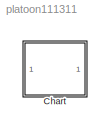
MODEL platoon111311
KIND model
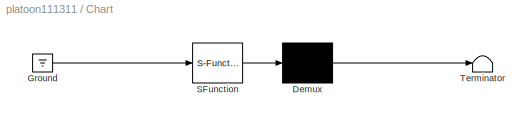
BLOCK [SubSystem] Chart
  ErrorFcn = Stateflow.Translate.translate
  FunctionWithSeparateData = off
  MaskDescription = Stateflow diagram
  MaskDisplay = plot(sf('Private','sfblk','xIcon'),sf('Private','sfblk','yIcon'));text(0.5,0,sf('Private', 'sfblk', 'tIcon'),'HorizontalAl','Center','VerticalAl','Bottom');
  MaskHideContents = off
  MaskIconFrame = off
  MaskIconOpaque = on
  MaskIconRotate = none
  MaskIconUnits = normalized
  MaskPortRotate = default
  MaskSelfModifiable = on
  MaskType = Stateflow
  MinAlgLoopOccurrences = off
  Opaque = off
  PermitHierarchicalResolution = ExplicitOnly
  Ports = []
  PropExecContextOutsideSubsystem = off
  RTWSystemCode = Auto
  RequestExecContextInheritance = off
  SFBlockType = Chart
  SID = 1
  TreatAsAtomicUnit = on
BLOCK [Demux] Chart/ Demux 
  Outputs = 1
  Ports = [1, 1]
  SID = 1::26
BLOCK [Ground] Chart/ Ground 
  SID = 1::27
BLOCK [S-Function] Chart/ SFunction 
  EnableBusSupport = off
  FunctionName = sf_sfun
  PortCounts = [1 1]
  Ports = [1, 1]
  SID = 1::25
  Tag = Stateflow S-Function platoon111311 1
BLOCK [Terminator] Chart/ Terminator 
  SID = 1::28
LINE Chart/ Demux :1 -> Chart/ Terminator :1
LINE Chart/ Ground :1 -> Chart/ SFunction :1
LINE Chart/ SFunction :1 -> Chart/ Demux :1
CHART Chart states=2 transitions=3
  STATE_LABEL 'a\\" ==     b &\\nb\\" ==    -c + u&\\nc\\" ==     1.6050a    +4.8680b   -3.5754c   -0.8198d   + 0.4270e   -0.0450f   -0.1942g   + 0.3626h   -0.0946i &\\nd\\" ==     e &\\ne \\"==     c -f &\\nf\\" ==      0.8718a    +3.8140b  -0.0754c   + 1.1936d   + 3.6258e   -3.2396f   -0.5950g   + 0.1294h   -0.0796i &\\ng\\" ==     h &\\nh\\"==      f -i &\\ni\\"==       0.7132a   + 3.5730b   -0.0964c   + 0.8472d    +3.2568e  ...<+44ch>'
  STATE_LABEL 'a\\" ==  b &\\nb\\" ==       -c+u &\\nc\\" ==        1.6050a    +4.8680b   -3.5754c      &\\nd\\" ==       e &\\ne\\" ==      c -f&\\nf\\" ==       1.1936d  +  3.6258e   -3.2396 f      &\\ng\\" ==   h &\\nh\\" ==       f      - i&\\ni\\" ==   0.7132a  +3.5730b  -0.0964c  +  0.8472d +  3.2568e  -0.0876 f  + 1.2726g   + 3.0720 h  -3.1356i'
